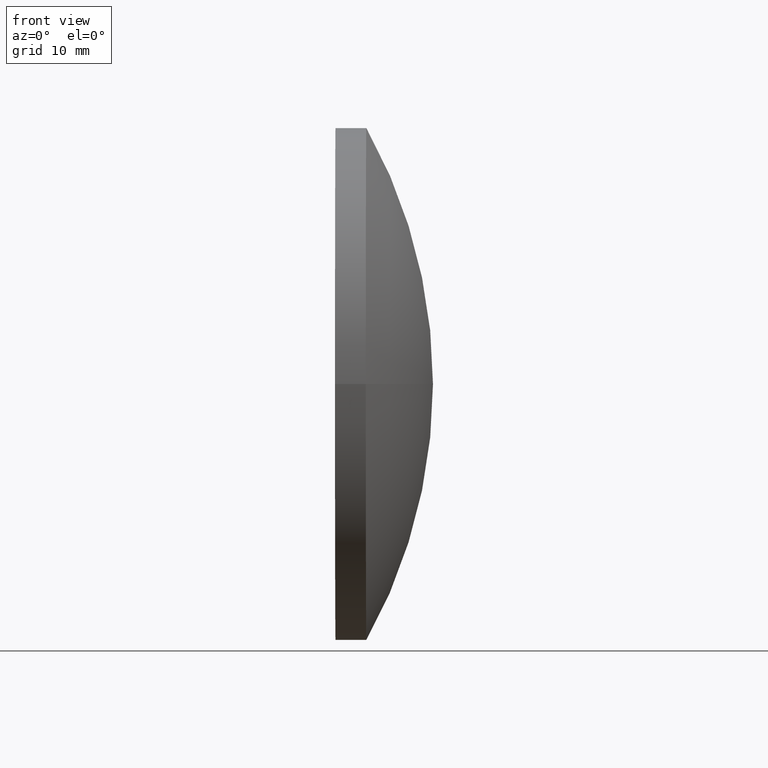
[diagram: clean part render]
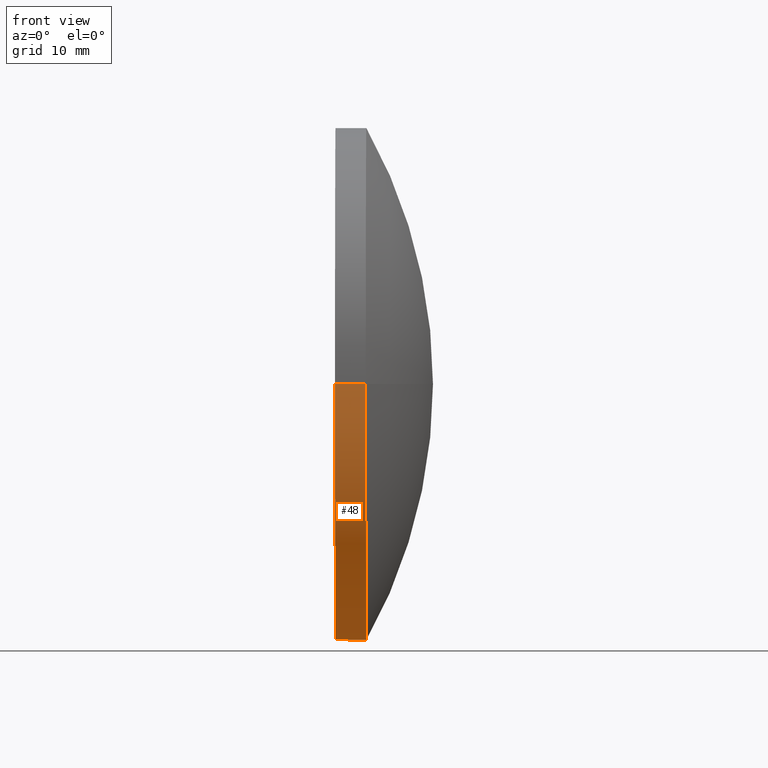
[diagram: same view with one face highlighted and labeled with its STEP entity id]
A machine part, front view. The second image highlights one B-rep face of the part: STEP entity #48.
In plain terms, the highlighted conical surface has half-angle 0.111 deg.
Its self-contained STEP definition (entity closure, byte-faithful):
#4 = LINE ( 'NONE', #12, #156 ) ;
#5 = DIRECTION ( 'NONE',  ( -0.9999981134525887100, 0.001942444661693687000, -0.0000000000000000000 ) ) ;
#10 = CARTESIAN_POINT ( 'NONE',  ( 562.0356236752284100, 92.89304286200956500, 0.0000000000000000000 ) ) ;
#11 = VECTOR ( 'NONE', #85, 1000.000000000000000 ) ;
#12 = CARTESIAN_POINT ( 'NONE',  ( 562.0356236752284100, 92.89304286200958000, 3.062324864573997700E-015 ) ) ;
#17 = ORIENTED_EDGE ( 'NONE', *, *, #32, .F. ) ;
#18 = ORIENTED_EDGE ( 'NONE', *, *, #79, .T. ) ;
#25 = CARTESIAN_POINT ( 'NONE',  ( 562.1327683636350200, 142.9045088534293800, 3.062324864573990200E-015 ) ) ;
#32 = EDGE_CURVE ( 'NONE', #67, #135, #98, .T. ) ;
#34 = AXIS2_PLACEMENT_3D ( 'NONE', #44, #89, #114 ) ;
#44 = CARTESIAN_POINT ( 'NONE',  ( 562.0841960194317200, 117.8987758577195000, 0.0000000000000000000 ) ) ;
#48 = ADVANCED_FACE ( 'NONE', ( #91 ), #129, .T. ) ;
#52 = VERTEX_POINT ( 'NONE', #25 ) ;
#53 = DIRECTION ( 'NONE',  ( -0.001942444661691946700, -0.9999981134525887100, 0.0000000000000000000 ) ) ;
#67 = VERTEX_POINT ( 'NONE', #190 ) ;
#68 = DIRECTION ( 'NONE',  ( 0.9999981134525887100, -0.001942444661693687000, 0.0000000000000000000 ) ) ;
#76 = LINE ( 'NONE', #116, #11 ) ;
#79 = EDGE_CURVE ( 'NONE', #67, #52, #76, .T. ) ;
#85 = DIRECTION ( 'NONE',  ( 1.000000000000000000, -6.190794404892230300E-016, 0.0000000000000000000 ) ) ;
#88 = DIRECTION ( 'NONE',  ( 0.9999924538174724800, -0.003884881994358857600, 2.378808637463279100E-019 ) ) ;
#89 = DIRECTION ( 'NONE',  ( -0.9999981134525887100, 0.001942444661693687000, -0.0000000000000000000 ) ) ;
#91 = FACE_OUTER_BOUND ( 'NONE', #136, .T. ) ;
#98 = CIRCLE ( 'NONE', #166, 24.99995283631469100 ) ;
#100 = EDGE_CURVE ( 'NONE', #135, #187, #4, .T. ) ;
#104 = ORIENTED_EDGE ( 'NONE', *, *, #140, .T. ) ;
#114 = DIRECTION ( 'NONE',  ( -0.001942444661694359900, -0.9999981134525884900, 0.0000000000000000000 ) ) ;
#116 = CARTESIAN_POINT ( 'NONE',  ( 562.1327683636350200, 142.9045088534294300, 0.0000000000000000000 ) ) ;
#125 = CARTESIAN_POINT ( 'NONE',  ( 562.0841960194317200, 117.8987758577195000, 0.0000000000000000000 ) ) ;
#129 = CONICAL_SURFACE ( 'NONE', #171, 25.00578017029977200, 0.001942445883198638900 ) ;
#135 = VERTEX_POINT ( 'NONE', #188 ) ;
#136 = EDGE_LOOP ( 'NONE', ( #168, #17, #18, #104 ) ) ;
#138 = DIRECTION ( 'NONE',  ( 0.001942444661694359900, 0.9999981134525884900, 0.0000000000000000000 ) ) ;
#140 = EDGE_CURVE ( 'NONE', #52, #187, #163, .T. ) ;
#156 = VECTOR ( 'NONE', #88, 1000.000000000000100 ) ;
#163 = CIRCLE ( 'NONE', #34, 25.00578017029977200 ) ;
#166 = AXIS2_PLACEMENT_3D ( 'NONE', #170, #5, #53 ) ;
#168 = ORIENTED_EDGE ( 'NONE', *, *, #100, .F. ) ;
#170 = CARTESIAN_POINT ( 'NONE',  ( 559.0842073387056000, 117.9046031807110400, 0.0000000000000000000 ) ) ;
#171 = AXIS2_PLACEMENT_3D ( 'NONE', #125, #68, #138 ) ;
#187 = VERTEX_POINT ( 'NONE', #10 ) ;
#188 = CARTESIAN_POINT ( 'NONE',  ( 559.0356463137761700, 92.90469750799265100, 3.061611221982758700E-015 ) ) ;
#190 = CARTESIAN_POINT ( 'NONE',  ( 559.1327683636350200, 142.9045088534294300, 0.0000000000000000000 ) ) ;